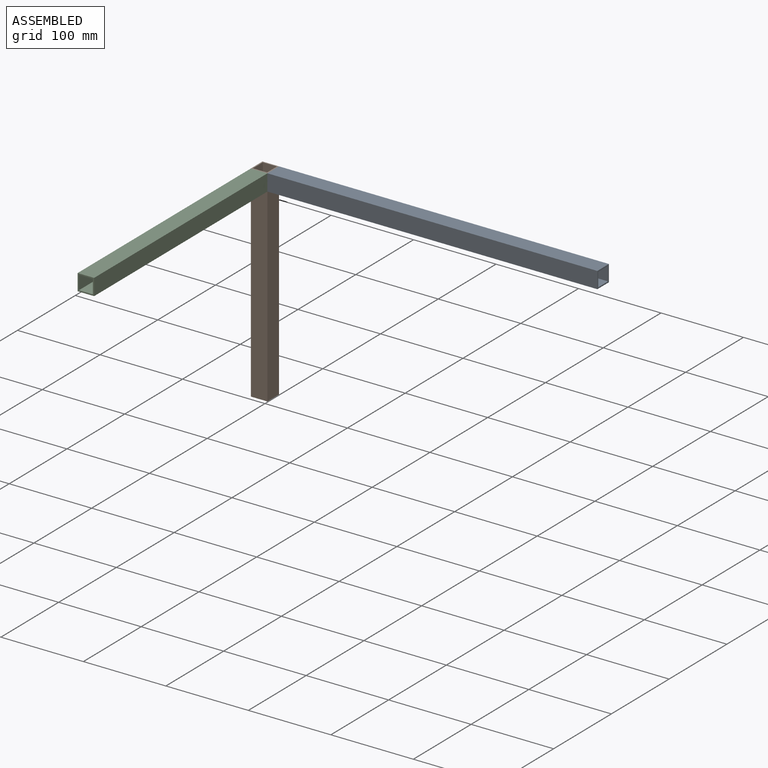
[diagram: assembled view]
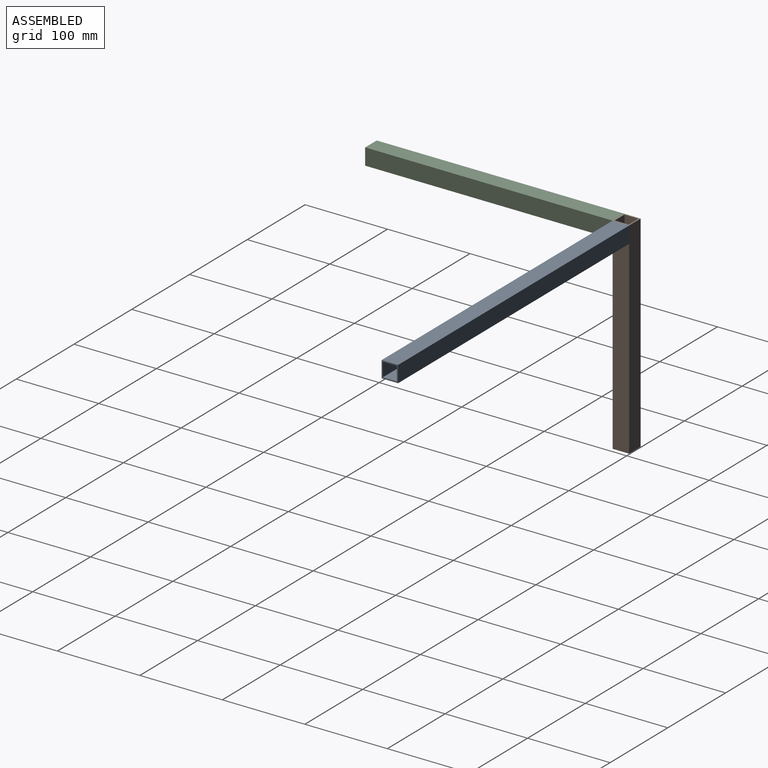
[diagram: assembled view, second angle]
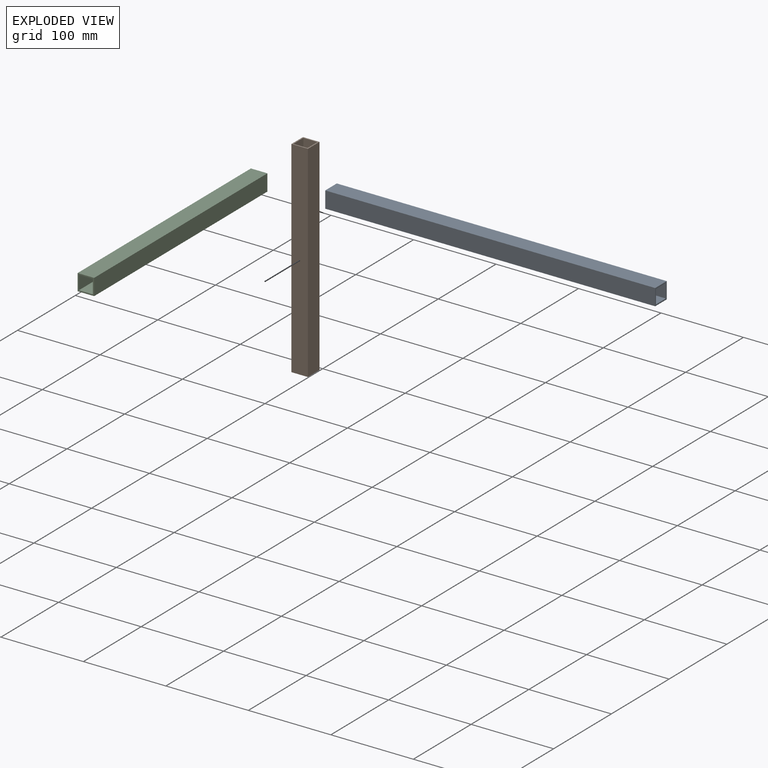
[diagram: exploded view]
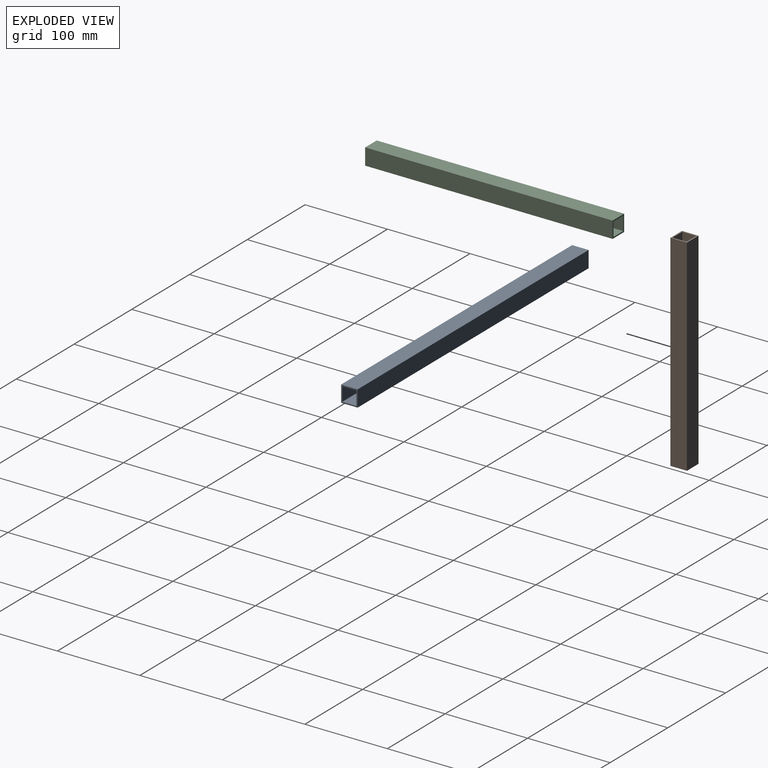
[diagram: exploded view, second angle]
ASSEMBLY  parts=3 mates=2
PART A: 10 faces, bbox 400x20x20 mm
  f0: plane 400x17mm, normal (0,-1,0), area 6800mm2, adj f1,f7,f8,f9
  f1: plane 400x17mm, normal (0,0,1), area 6800mm2, adj f0,f2,f8,f9
  f2: plane 400x17mm, normal (0,1,0), area 6800mm2, adj f1,f7,f8,f9
  f3: plane 400x20mm, normal (0,1,0), area 8000mm2, adj f4,f6,f8,f9
  f4: plane 400x20mm, normal (0,0,1), area 8000mm2, adj f3,f5,f8,f9
  f5: plane 400x20mm, normal (0,-1,0), area 8000mm2, adj f4,f6,f8,f9
  f6: plane 400x20mm, normal (0,0,-1), area 8000mm2, adj f3,f5,f8,f9
  f7: plane 400x17mm, normal (0,0,-1), area 6800mm2, adj f0,f2,f8,f9
  f8: plane 20x20mm, normal (1,0,0), area 111mm2, adj f0,f1,f2,f3,f4,f5,f6,f7
  f9: plane 20x20mm, normal (-1,0,0), area 111mm2, adj f0,f1,f2,f3,f4,f5,f6,f7
PART B: 10 faces, bbox 20x20x250 mm
  f0: plane 250x17mm, normal (0,-1,0), area 4250mm2, adj f1,f7,f8,f9
  f1: plane 250x17mm, normal (-1,0,0), area 4250mm2, adj f0,f2,f8,f9
  f2: plane 250x17mm, normal (0,1,0), area 4250mm2, adj f1,f7,f8,f9
  f3: plane 250x20mm, normal (1,0,0), area 5000mm2, adj f4,f6,f8,f9
  f4: plane 250x20mm, normal (0,1,0), area 5000mm2, adj f3,f5,f8,f9
  f5: plane 250x20mm, normal (-1,0,0), area 5000mm2, adj f4,f6,f8,f9
  f6: plane 250x20mm, normal (0,-1,0), area 5000mm2, adj f3,f5,f8,f9
  f7: plane 250x17mm, normal (1,0,0), area 4250mm2, adj f0,f2,f8,f9
  f8: plane 20x20mm, normal (0,0,1), area 111mm2, adj f0,f1,f2,f3,f4,f5,f6,f7
  f9: plane 20x20mm, normal (0,0,-1), area 111mm2, adj f0,f1,f2,f3,f4,f5,f6,f7
PART C: 10 faces, bbox 20x300x20 mm
  f0: plane 300x17mm, normal (1,0,0), area 5100mm2, adj f1,f7,f8,f9
  f1: plane 300x17mm, normal (0,0,-1), area 5100mm2, adj f0,f2,f8,f9
  f2: plane 300x17mm, normal (-1,0,0), area 5100mm2, adj f1,f7,f8,f9
  f3: plane 300x20mm, normal (1,0,0), area 6000mm2, adj f4,f6,f8,f9
  f4: plane 300x20mm, normal (0,0,1), area 6000mm2, adj f3,f5,f8,f9
  f5: plane 300x20mm, normal (-1,0,0), area 6000mm2, adj f4,f6,f8,f9
  f6: plane 300x20mm, normal (0,0,-1), area 6000mm2, adj f3,f5,f8,f9
  f7: plane 300x17mm, normal (0,0,1), area 5100mm2, adj f0,f2,f8,f9
  f8: plane 20x20mm, normal (0,1,0), area 111mm2, adj f0,f1,f2,f3,f4,f5,f6,f7
  f9: plane 20x20mm, normal (0,-1,0), area 111mm2, adj f0,f1,f2,f3,f4,f5,f6,f7
PLACE A t=(10,0,240)mm
PLACE B at identity
PLACE C t=(0,-310,240)mm
MATE fastened A.f9 <-> B.f3  axis (-1,0,0) through (10,-10,250)mm
MATE fastened C.f8 <-> B.f6  axis (0,1,0) through (-10,-10,250)mm
